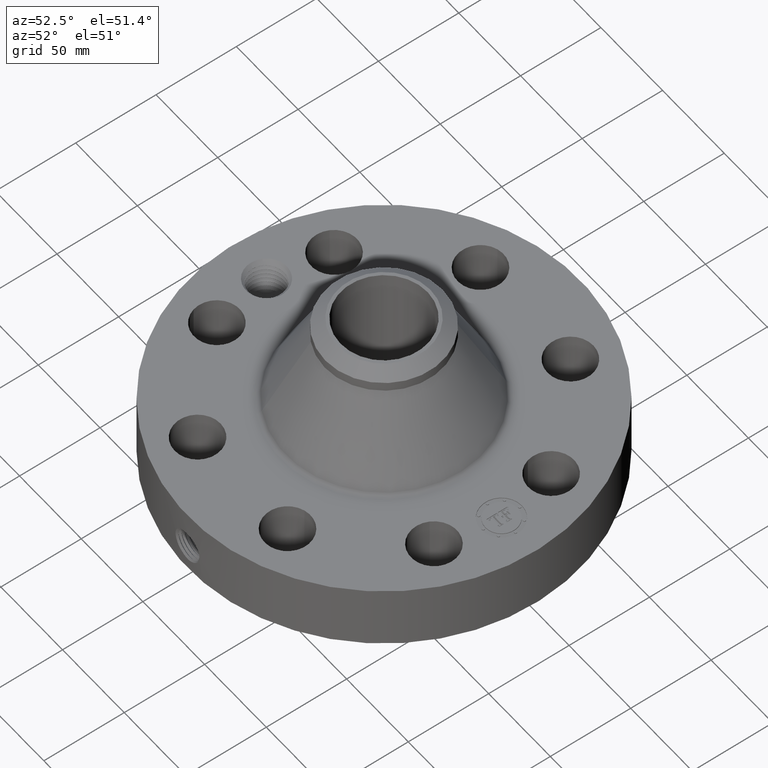
[diagram: clean part render]
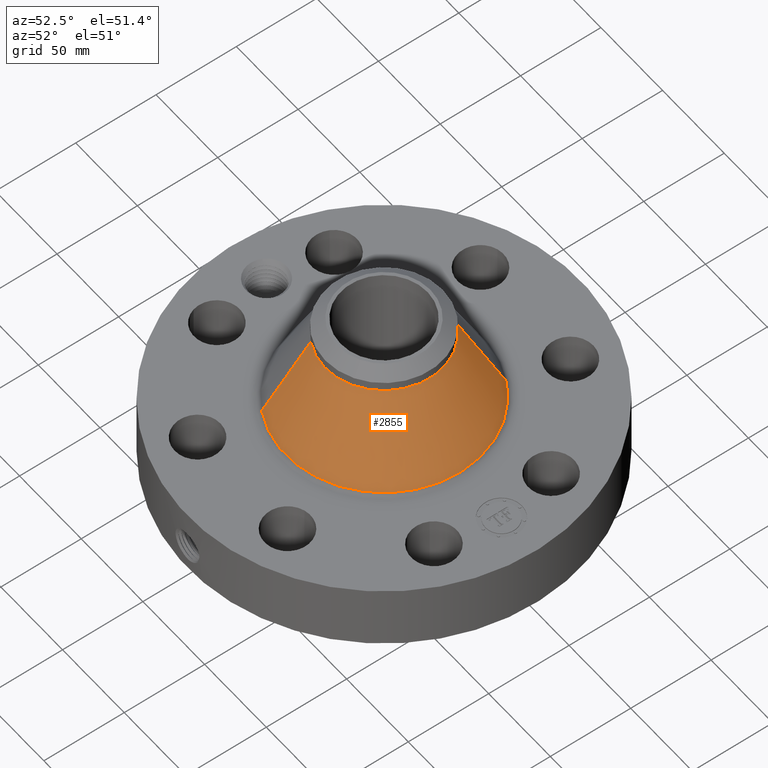
[diagram: same view with one face highlighted and labeled with its STEP entity id]
A machine part, auxiliary view. The second image highlights one B-rep face of the part: STEP entity #2855.
In plain terms, the highlighted conical surface has half-angle 26.175 deg.
Its self-contained STEP definition (entity closure, byte-faithful):
#2111=AXIS2_PLACEMENT_3D('Circle Axis2P3D',#2109,#2110,$) ;
#2828=AXIS2_PLACEMENT_3D('Cone Axis2P3D',#2825,#2826,#2827) ;
#2839=AXIS2_PLACEMENT_3D('Circle Axis2P3D',#2837,#2838,$) ;
#2106=CARTESIAN_POINT('Vertex',(1.15399442599,2.1123726277,1.93706679161)) ;
#2109=CARTESIAN_POINT('Axis2P3D Location',(0.,0.,1.93706679161)) ;
#2113=CARTESIAN_POINT('Vertex',(-1.15399442599,-2.1123726277,1.93706679161)) ;
#2825=CARTESIAN_POINT('Axis2P3D Location',(0.,0.,3.90453303749)) ;
#2830=CARTESIAN_POINT('Line Origine',(0.92218360079,1.68804575841,2.92079991455)) ;
#2834=CARTESIAN_POINT('Vertex',(0.690372775593,1.26371888913,3.90453303749)) ;
#2837=CARTESIAN_POINT('Axis2P3D Location',(0.,0.,3.90453303749)) ;
#2841=CARTESIAN_POINT('Vertex',(-0.690372775593,-1.26371888913,3.90453303749)) ;
#2844=CARTESIAN_POINT('Line Origine',(-0.92218360079,-1.68804575841,2.92079991455)) ;
#2110=DIRECTION('Axis2P3D Direction',(0.,0.,-0.0393700787402)) ;
#2826=DIRECTION('Axis2P3D Direction',(0.,0.,-0.0393700787402)) ;
#2827=DIRECTION('Axis2P3D XDirection',(-0.0188750212049,-0.0345504945626,0.)) ;
#2831=DIRECTION('Vector Direction',(0.00832596192475,0.0152405710747,-0.0353327956911)) ;
#2838=DIRECTION('Axis2P3D Direction',(0.,0.,-0.0393700787402)) ;
#2845=DIRECTION('Vector Direction',(-0.00832596192475,-0.0152405710747,-0.0353327956911)) ;
#2832=VECTOR('Line Direction',#2831,0.0393700787402) ;
#2846=VECTOR('Line Direction',#2845,0.0393700787402) ;
#2850=ORIENTED_EDGE('',*,*,#2115,.F.) ;
#2851=ORIENTED_EDGE('',*,*,#2836,.T.) ;
#2852=ORIENTED_EDGE('',*,*,#2843,.T.) ;
#2853=ORIENTED_EDGE('',*,*,#2848,.F.) ;
#2855=ADVANCED_FACE('PartBody',(#2854),#2829,.T.) ;
#2112=CIRCLE('generated circle',#2111,2.40703578151) ;
#2840=CIRCLE('generated circle',#2839,1.44000000001) ;
#2829=CONICAL_SURFACE('Cone',#2828,1.44000000001,0.456835209489) ;
#2115=EDGE_CURVE('',#2107,#2114,#2112,.T.) ;
#2836=EDGE_CURVE('',#2107,#2835,#2833,.F.) ;
#2843=EDGE_CURVE('',#2835,#2842,#2840,.T.) ;
#2848=EDGE_CURVE('',#2114,#2842,#2847,.F.) ;
#2849=EDGE_LOOP('',(#2850,#2851,#2852,#2853)) ;
#2854=FACE_OUTER_BOUND('',#2849,.T.) ;
#2833=LINE('Line',#2830,#2832) ;
#2847=LINE('Line',#2844,#2846) ;
#2107=VERTEX_POINT('',#2106) ;
#2114=VERTEX_POINT('',#2113) ;
#2835=VERTEX_POINT('',#2834) ;
#2842=VERTEX_POINT('',#2841) ;